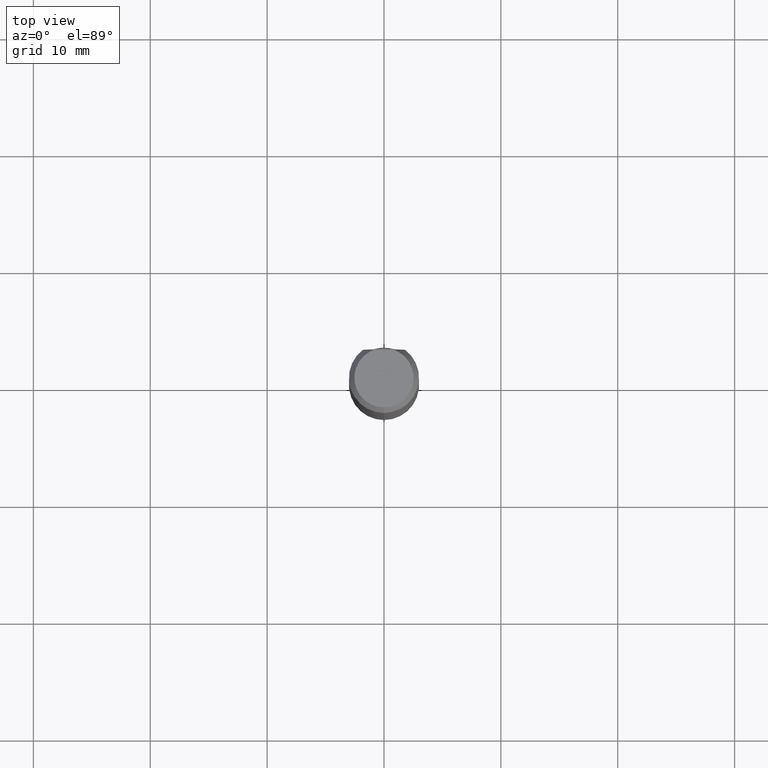
[diagram: clean part render]
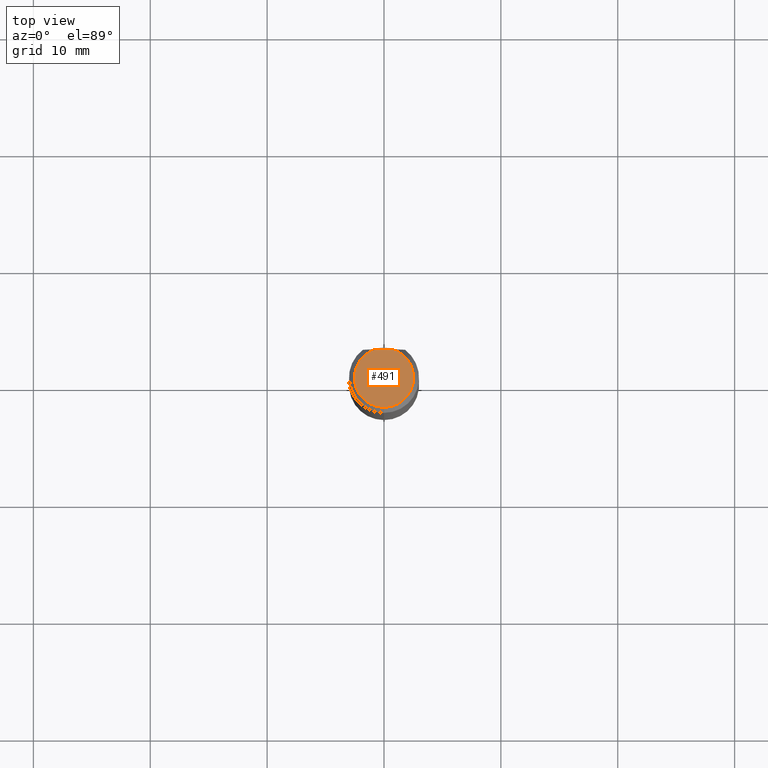
[diagram: same view with one face highlighted and labeled with its STEP entity id]
A machine part, top view. The second image highlights one B-rep face of the part: STEP entity #491.
In plain terms, the highlighted planar face has unit normal (-0, 0, 1).
Its self-contained STEP definition (entity closure, byte-faithful):
#337=VERTEX_POINT('',#873);
#369=EDGE_CURVE('',#337,#609,#912,.T.);
#491=ADVANCED_FACE('',(#1046),#1047,.T.);
#609=VERTEX_POINT('',#1171);
#667=VERTEX_POINT('',#1235);
#709=EDGE_CURVE('',#337,#667,#1280,.T.);
#755=EDGE_CURVE('',#609,#667,#1330,.T.);
#873=CARTESIAN_POINT('',(0.737618527549059,2.42857385085146,0.0));
#912=CIRCLE('',#2466,2.5381197846483);
#1046=FACE_OUTER_BOUND('',#3235,.T.);
#1047=PLANE('',#3236);
#1171=CARTESIAN_POINT('',(3.10819761504259E-016,-2.5381197846483,0.0));
#1235=CARTESIAN_POINT('',(-0.737618527549059,2.42857385085146,0.0));
#1280=LINE('',#4672,#4673);
#1330=CIRCLE('',#5163,2.5381197846483);
#2466=AXIS2_PLACEMENT_3D('',#5531,#5532,#5533);
#3235=EDGE_LOOP('',(#5690,#5691,#5692));
#3236=AXIS2_PLACEMENT_3D('',#5693,#5694,#5695);
#4672=CARTESIAN_POINT('',(-1.5,2.42857385085146,0.0));
#4673=VECTOR('',#5894,1.0);
#5163=AXIS2_PLACEMENT_3D('',#5945,#5946,#5947);
#5531=CARTESIAN_POINT('',(0.0,0.0,0.0));
#5532=DIRECTION('',(0.0,0.0,-1.0));
#5533=DIRECTION('',(0.0,1.0,0.0));
#5690=ORIENTED_EDGE('',*,*,#709,.T.);
#5691=ORIENTED_EDGE('',*,*,#755,.F.);
#5692=ORIENTED_EDGE('',*,*,#369,.F.);
#5693=CARTESIAN_POINT('',(0.0,1.26905989232415,0.0));
#5694=DIRECTION('',(-0.0,0.0,1.0));
#5695=DIRECTION('',(0.0,-1.0,0.0));
#5894=DIRECTION('',(-1.0,0.0,0.0));
#5945=CARTESIAN_POINT('',(0.0,0.0,0.0));
#5946=DIRECTION('',(0.0,0.0,-1.0));
#5947=DIRECTION('',(0.0,1.0,0.0));